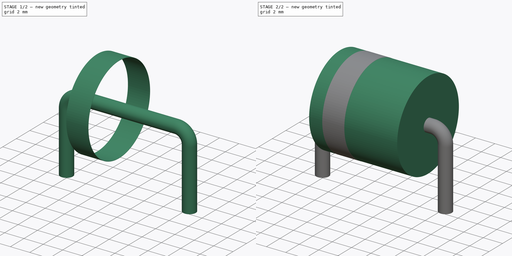
[diagram: build sequence overview — one tinted view per stage of 2, left to right]
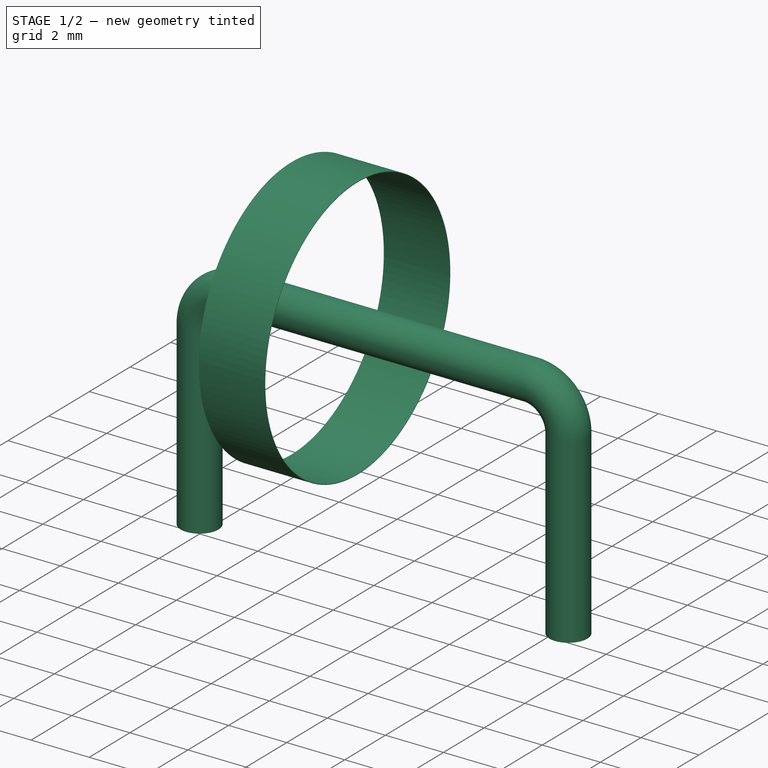
[diagram: stage 1 of 2 — iso view after this stage's code; geometry added in this stage tinted green]
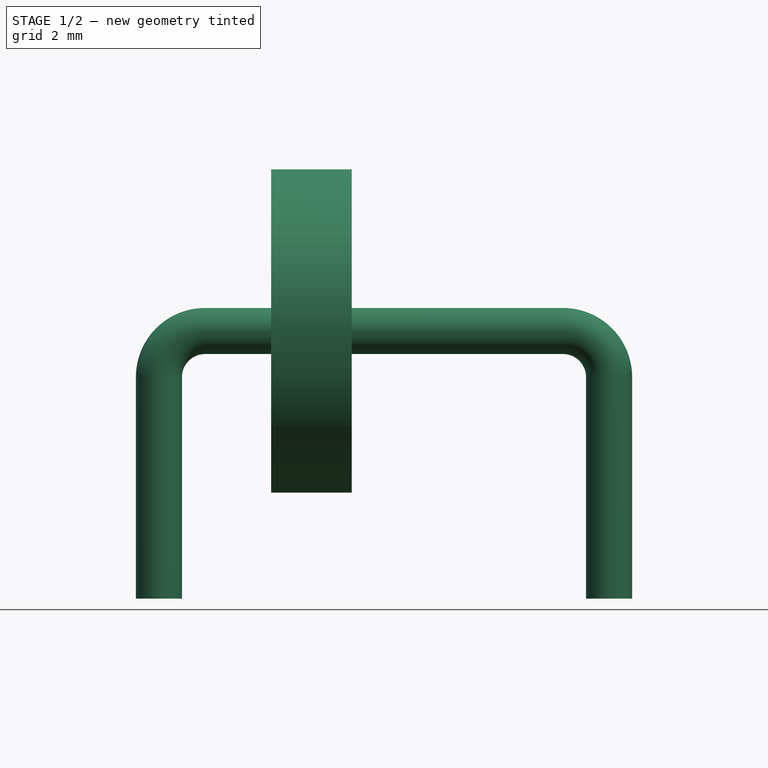
[diagram: stage 1 of 2 — front view after this stage's code; geometry added in this stage tinted green]
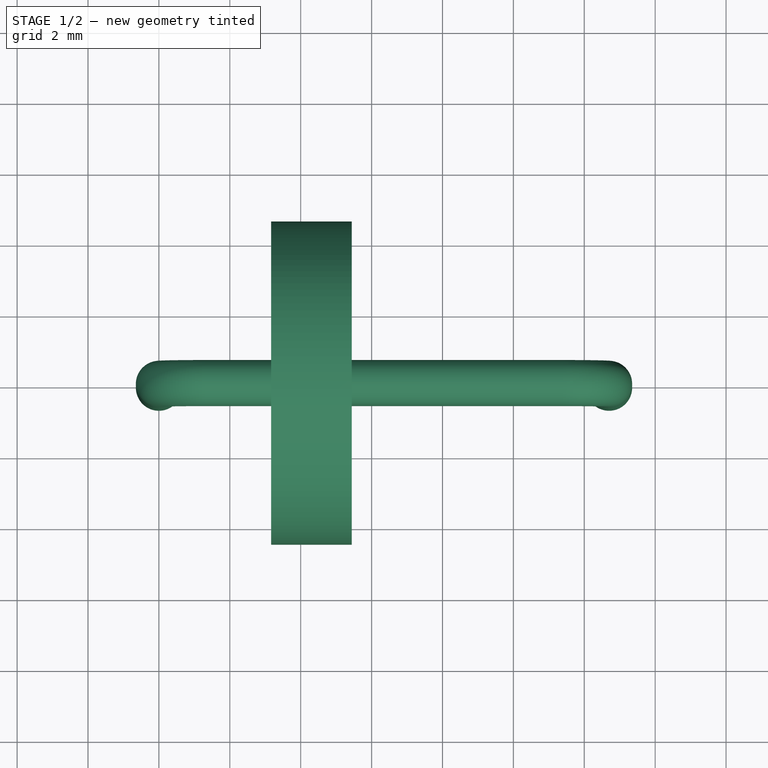
[diagram: stage 1 of 2 — top view after this stage's code; geometry added in this stage tinted green]
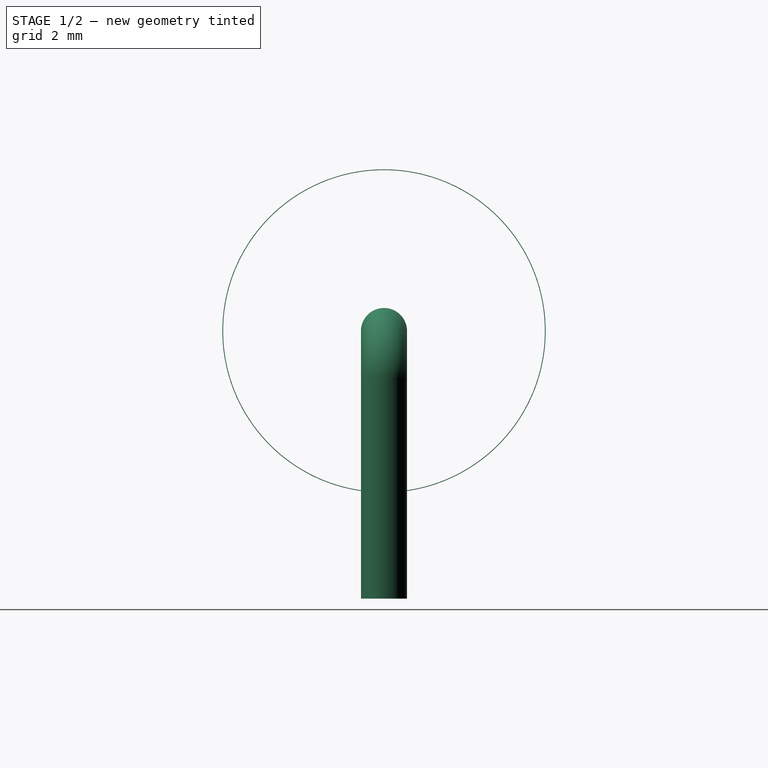
[diagram: stage 1 of 2 — right view after this stage's code; geometry added in this stage tinted green]
FCSTD DOCUMENT  (FreeCAD 0.17R12018 (Git))
Label: D_P600_R-6_P12.70mm_Horizontal
License: All rights reserved
LicenseURL: http://en.wikipedia.org/wiki/All_rights_reserved
objects: Sketcher::SketchObject×4, PartDesign::Revolution×2, Spreadsheet::Sheet×1, Part::Sweep×1, Part::MultiFuse×1, Part::Feature×1
note: 11 computed .brp shape members not serialized (recipe doc carries the construction recipe); baked Part::Feature solids carry a one-line shape summary decoded from their .brp

FEATURE [Sketcher::SketchObject] Sketch003
  MapMode = 5
  Placement = pos=(0,0,0) rot=(1,0,0;1.5708rad)
  expr: Constraints[12] = Spreadsheet.L * 0.25
  expr: Constraints[13] = Spreadsheet.d / 2 - 0.01
  expr: Constraints[14] = (Spreadsheet.RM - Spreadsheet.L) / 2 + 0.14999999999999999 * Spreadsheet.L
  expr: Constraints[2] = Spreadsheet.d / 2 + 0.5
  sketch-geometry (5):
    g0: LineSegment [constr] StartX=0 StartY=5.05 StartZ=0 EndX=4.17342 EndY=5.05 EndZ=0
    g1: LineSegment StartX=3.165 StartY=9.61 StartZ=0 EndX=5.44 EndY=9.61 EndZ=0
    g2: LineSegment StartX=5.44 StartY=9.61 StartZ=0 EndX=5.44 EndY=9.59 EndZ=0
    g3: LineSegment StartX=5.44 StartY=9.59 StartZ=0 EndX=3.165 EndY=9.59 EndZ=0
    g4: LineSegment StartX=3.165 StartY=9.59 StartZ=0 EndX=3.165 EndY=9.61 EndZ=0
  constraints (15):
    c: PointOnObject(g0,g-2)
    c: Horizontal(g0)
    c: DistanceY(g-1,g0) = 5.05
    c: Coincident(g1,g2)
    c: Coincident(g2,g3)
    c: Coincident(g3,g4)
    c: Coincident(g4,g1)
    c: Horizontal(g1)
    c: Horizontal(g3)
    c: Vertical(g2)
    c: Vertical(g4)
    c: DistanceY(g2,g1) = 0.02
    c: DistanceX(g1,g1) = 2.275
    c: DistanceY(g0,g2) = 4.54
    c: DistanceX(g0,g3) = 3.165
FEATURE [PartDesign::Revolution] Revolution001
  Angle = 360
  Axis = (4.17342,0,0)
  Base = (0,0,5.05)
  Placement = pos=(0,0,0) rot=(1,0,0;1.5708rad)
  Profile = -> Sketch003
  ReferenceAxis = -> Sketch003 [Axis0]
FEATURE [Sketcher::SketchObject] Sketch
  MapMode = 5
  Placement = pos=(0,0,-2) rot=(0,0,1;0rad)
  expr: Constraints[1] = Spreadsheet.d_wire / 2
  sketch-geometry (1):
    g0: Circle CenterX=0 CenterY=0 CenterZ=0 NormalX=0 NormalY=0 NormalZ=1 Radius=0.65
  constraints (2):
    c: Coincident(g0,g-1)
    c: Radius(g0) = 0.65
FEATURE [Spreadsheet::Sheet] Spreadsheet
  cells = A1=L; B1(L)=9.0999999999999996; A2=d; B2(d)=9.0999999999999996; C2(d2)=0; A3=RM; B3(RM)=12.699999999999999; C3(shuntPinsRM)=0; A4=d_wire; B4(d_wire)=1.3
FEATURE [Part::Sweep] Sweep
  Frenet = false
  Sections = -> [Sketch]
  Solid = true
  Spine = -> Sketch001 [Edge1,Edge2,Edge3,Edge4,Edge5]
  Transition = 1
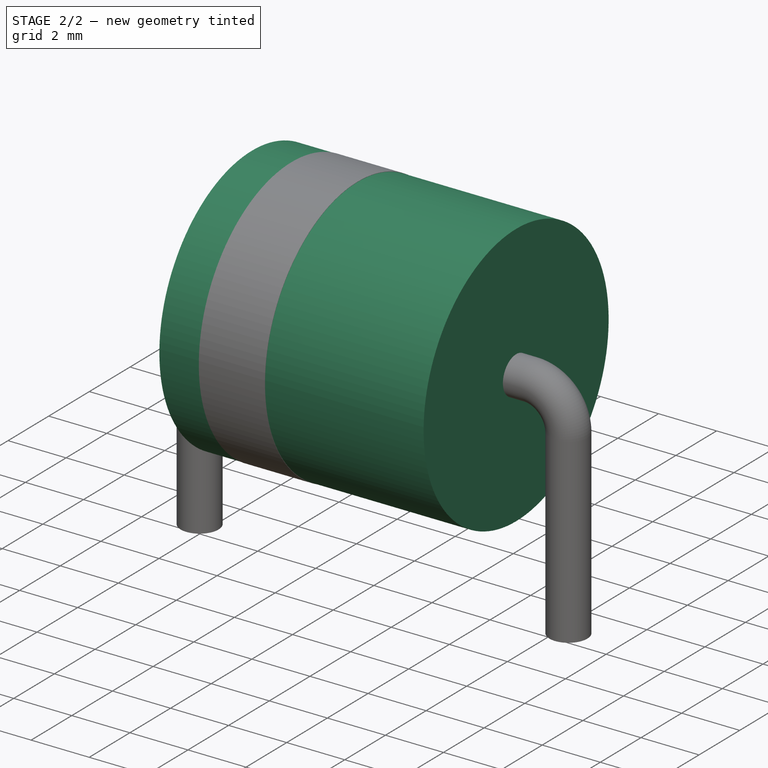
[diagram: stage 2 of 2 — iso view after this stage's code; geometry added in this stage tinted green]
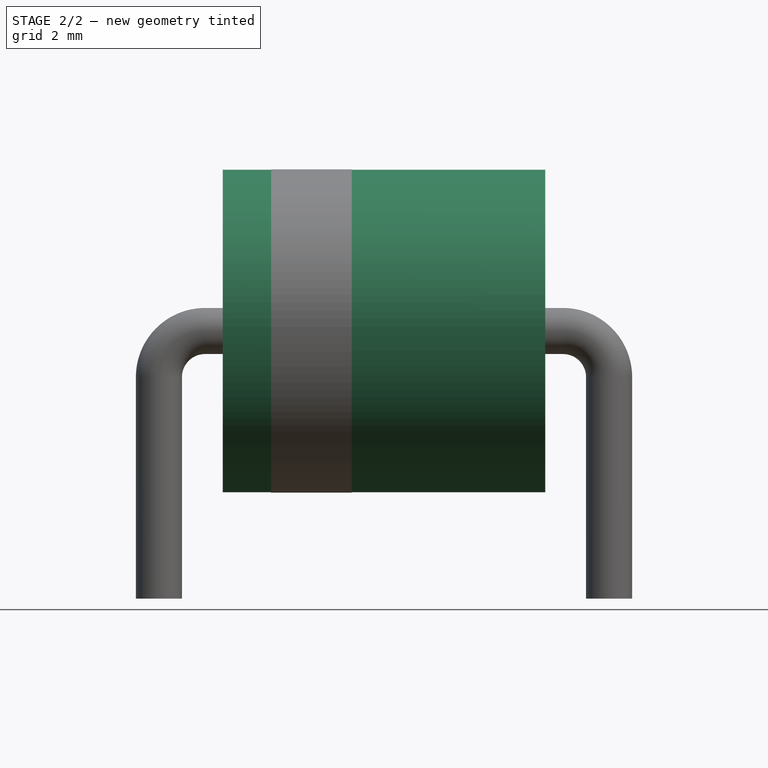
[diagram: stage 2 of 2 — front view after this stage's code; geometry added in this stage tinted green]
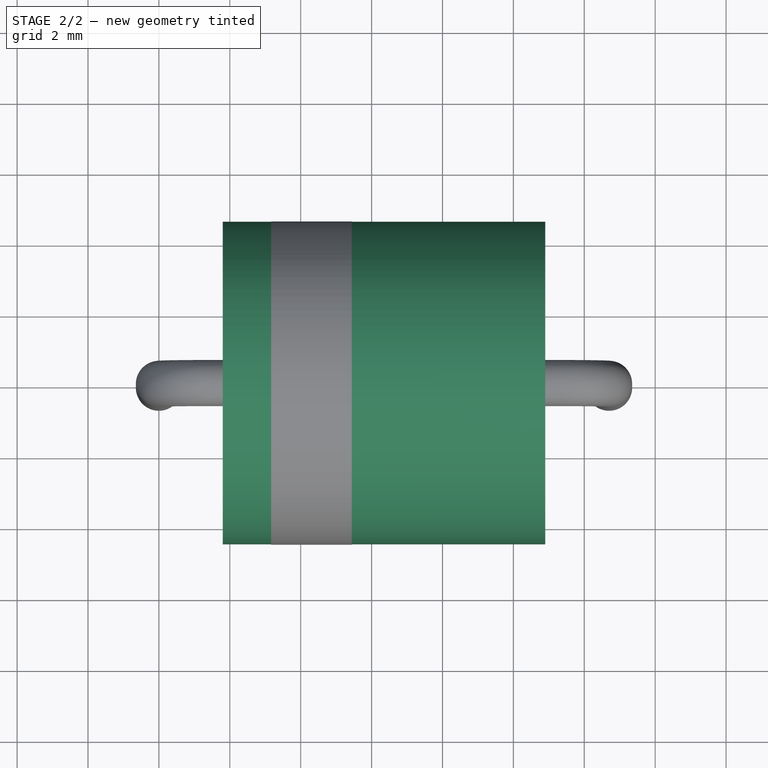
[diagram: stage 2 of 2 — top view after this stage's code; geometry added in this stage tinted green]
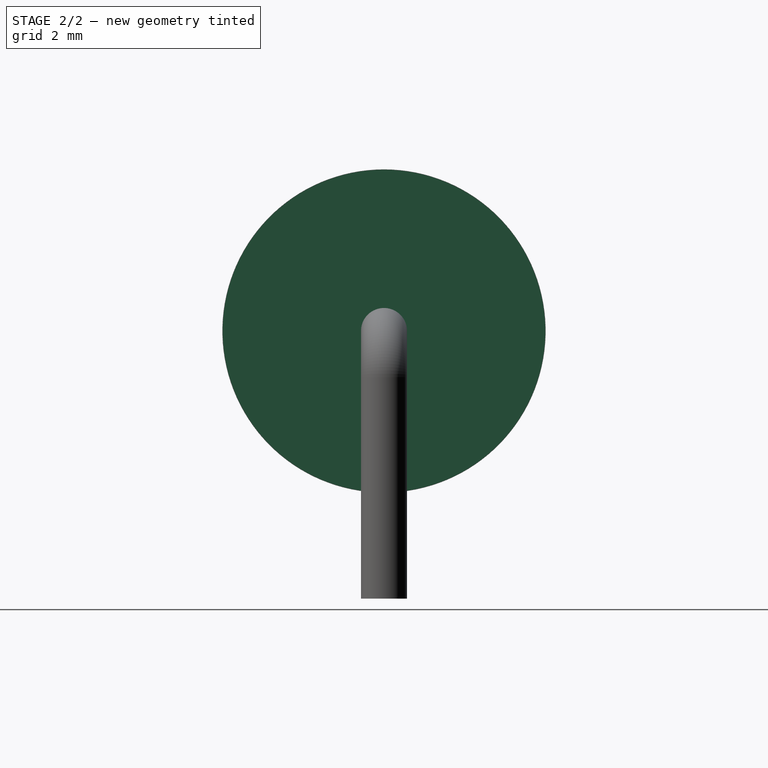
[diagram: stage 2 of 2 — right view after this stage's code; geometry added in this stage tinted green]
FEATURE [Sketcher::SketchObject] Sketch001
  MapMode = 5
  Placement = pos=(0,0,0) rot=(1,0,0;1.5708rad)
  expr: Constraints[10] = Spreadsheet.d / 2 + 0.5
  expr: Constraints[3] = Spreadsheet.RM
  expr: Constraints[14] = Spreadsheet.d_wire
  expr: Constraints[13] = Spreadsheet.d_wire
  sketch-geometry (5):
    g0: LineSegment StartX=1.3 StartY=5.05 StartZ=0 EndX=11.4 EndY=5.05 EndZ=0
    g1: ArcOfCircle CenterX=11.4 CenterY=3.75 CenterZ=0 NormalX=0 NormalY=0 NormalZ=1 Radius=1.3 StartAngle=0 EndAngle=1.5708
    g2: ArcOfCircle CenterX=1.3 CenterY=3.75 CenterZ=0 NormalX=0 NormalY=0 NormalZ=1 Radius=1.3 StartAngle=1.5708 EndAngle=3.14159
    g3: LineSegment StartX=0 StartY=3.75 StartZ=0 EndX=0 EndY=-2.5 EndZ=0
    g4: LineSegment StartX=12.7 StartY=3.75 StartZ=0 EndX=12.7 EndY=-2.5 EndZ=0
  constraints (18):
    c: Horizontal(g0)
    c: Coincident(g1,g0)
    c: Coincident(g2,g0)
    c: DistanceX(g2,g1) = 12.7
    c: Vertical(g3)
    c: Vertical(g4)
    c: PointOnObject(g-1,g3)
    c: DistanceY(g3,g-1) = 2.5
    c: DistanceY(g3,g4) = 0
    c: Coincident(g2,g3)
    c: DistanceY(g-1,g0) = 5.05
    c: DistanceY(g2,g2) = 0
    c: DistanceY(g1,g1) = 0
    c: DistanceX(g2,g0) = 1.3
    c: DistanceX(g0,g1) = 1.3
    c: Coincident(g4,g1)
    c: DistanceX(g0,g2) = 0
    c: DistanceX(g1,g0) = 0
FEATURE [Sketcher::SketchObject] Sketch002  label="Axis0"
  MapMode = 5
  Placement = pos=(0,0,0) rot=(1,0,0;1.5708rad)
  expr: Constraints[1] = Spreadsheet.L
  expr: Constraints[8] = Spreadsheet.d / 2 + 0.5
  expr: Constraints[7] = (Spreadsheet.RM - Spreadsheet.L) / 2
  expr: Constraints[11] = Spreadsheet.d / 2
  sketch-geometry (7):
    g0: LineSegment [constr] StartX=1.8 StartY=5.05 StartZ=0 EndX=10.9 EndY=5.05 EndZ=0
    g1: LineSegment [constr] StartX=1.8 StartY=5.05 StartZ=0 EndX=1.8 EndY=0 EndZ=0
    g2: LineSegment [constr] StartX=1.8 StartY=0 StartZ=0 EndX=0 EndY=0 EndZ=0
    g3: LineSegment StartX=1.8 StartY=5.05 StartZ=0 EndX=10.9 EndY=5.05 EndZ=0
    g4: LineSegment StartX=1.8 StartY=5.05 StartZ=0 EndX=1.8 EndY=9.6 EndZ=0
    g5: LineSegment StartX=10.9 StartY=5.05 StartZ=0 EndX=10.9 EndY=9.6 EndZ=0
    g6: LineSegment StartX=1.8 StartY=9.6 StartZ=0 EndX=10.9 EndY=9.6 EndZ=0
  constraints (19):
    c: Horizontal(g0)
    c: DistanceX(g0,g0) = 9.1
    c: Coincident(g1,g0)
    c: Vertical(g1)
    c: Coincident(g2,g1)
    c: Coincident(g2,g-1)
    c: Horizontal(g2)
    c: DistanceX(g2,g2) = 1.8
    c: DistanceY(g1,g1) = 5.05
    c: Coincident(g3,g0)
    c: Vertical(g4)
    c: DistanceY(g4,g4) = 4.55
    c: Coincident(g4,g0)
    c: Coincident(g5,g0)
    c: Vertical(g5)
    c: Equal(g5,g4)
    c: Coincident(g3,g0)
    c: Coincident(g6,g4)
    c: Coincident(g6,g5)
FEATURE [PartDesign::Revolution] Revolution
  Angle = 360
  Axis = (9.1,0,0)
  Base = (1.8,0,5.05)
  Placement = pos=(0,0,0) rot=(1,0,0;1.5708rad)
  Profile = -> Sketch002
  ReferenceAxis = -> Sketch002 [Axis0]
FEATURE [Part::MultiFuse] Revolution_mp_cp  label="Revolution_fd"
  Shapes = -> [Revolution,Revolution001,Sweep]
FEATURE [Part::Feature] Shape  label="D_P600_R-6_P12.70mm_Horizontal"
  shape: bbox 14.32 x 9.12 x 12.11 mm, 15 faces (baked)
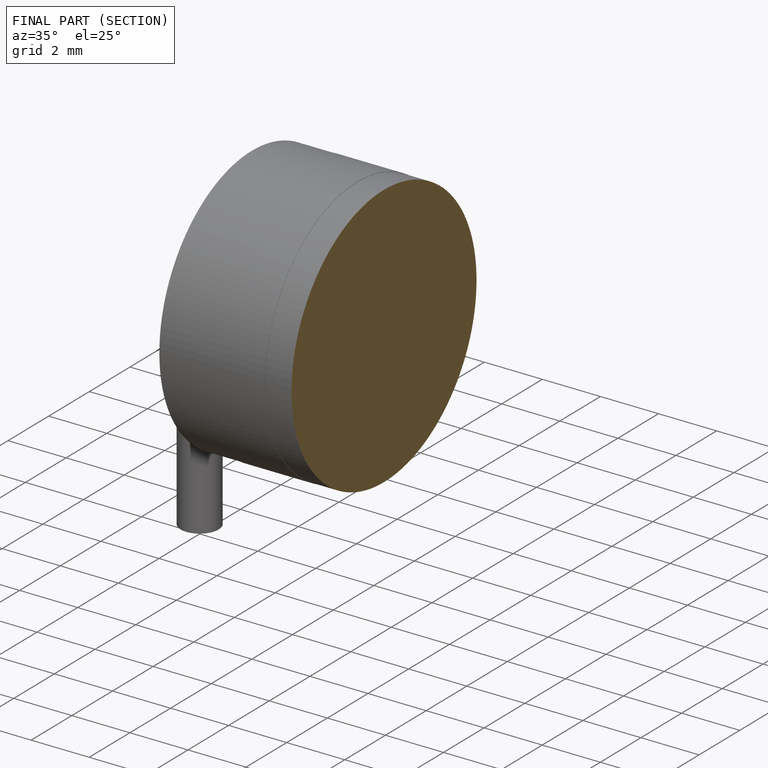
[diagram: finished part — half-section view (interior)]
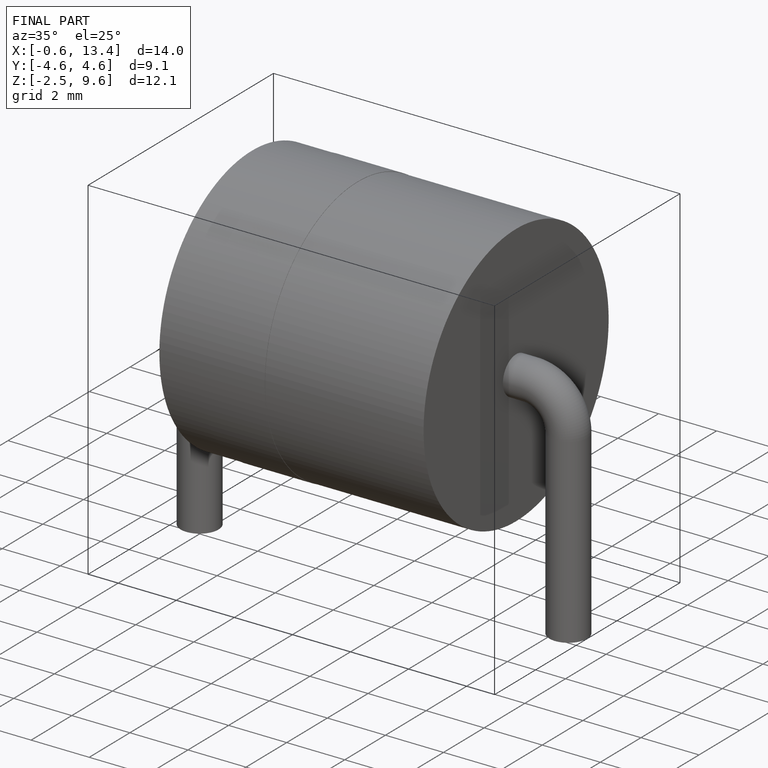
[diagram: finished part — iso view with bounding-box wireframe]
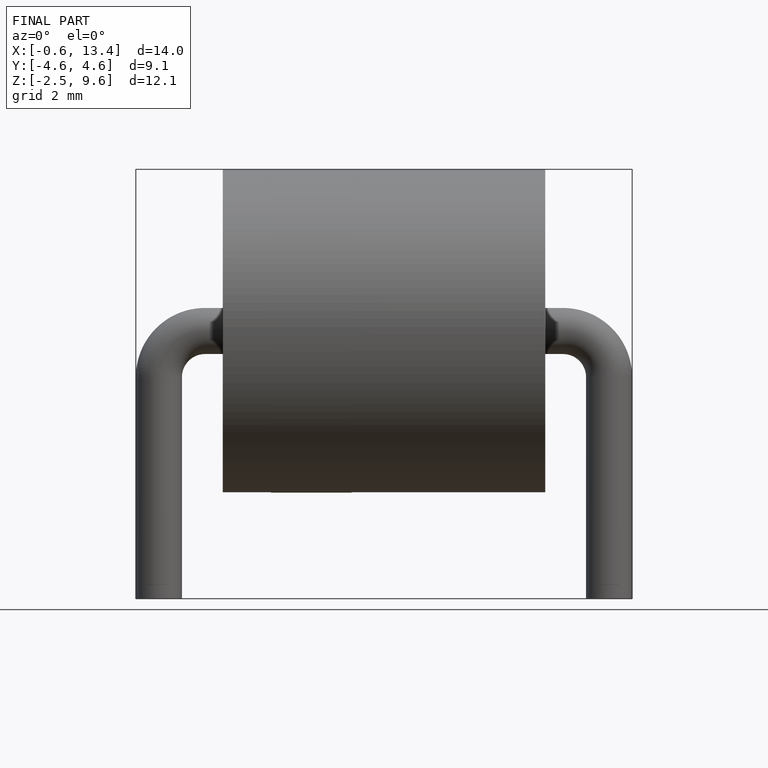
[diagram: finished part — front view with bounding-box wireframe]
